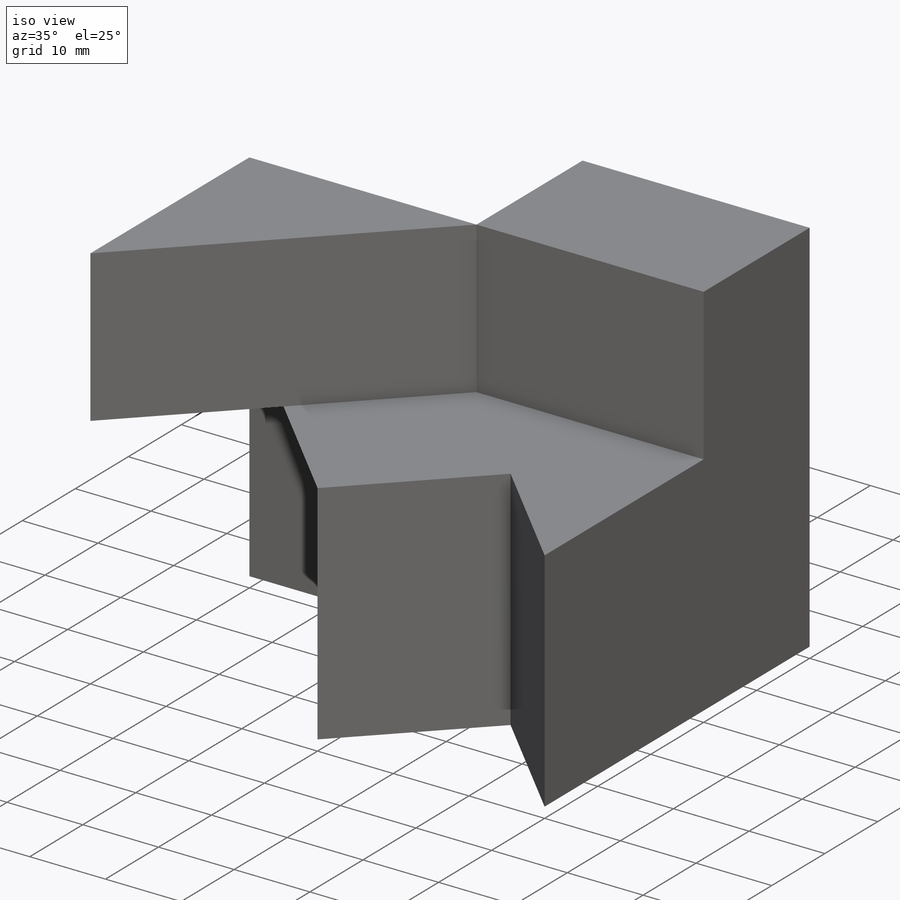
[diagram: iso view]
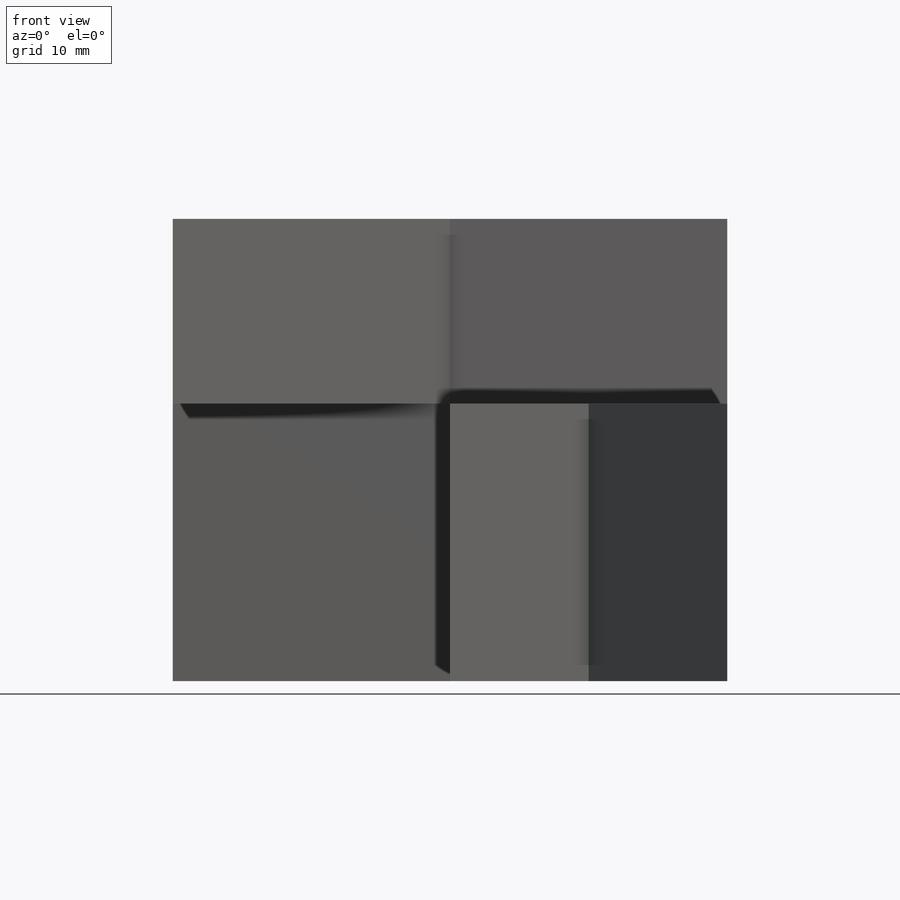
[diagram: front view]
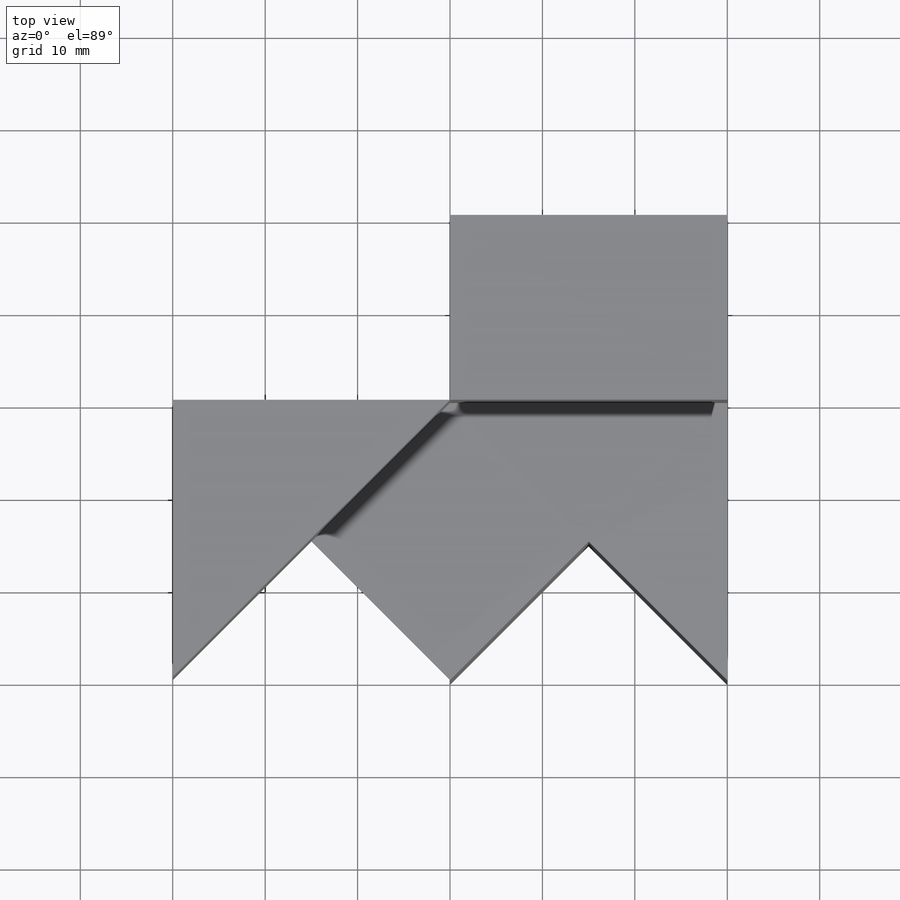
[diagram: top view]
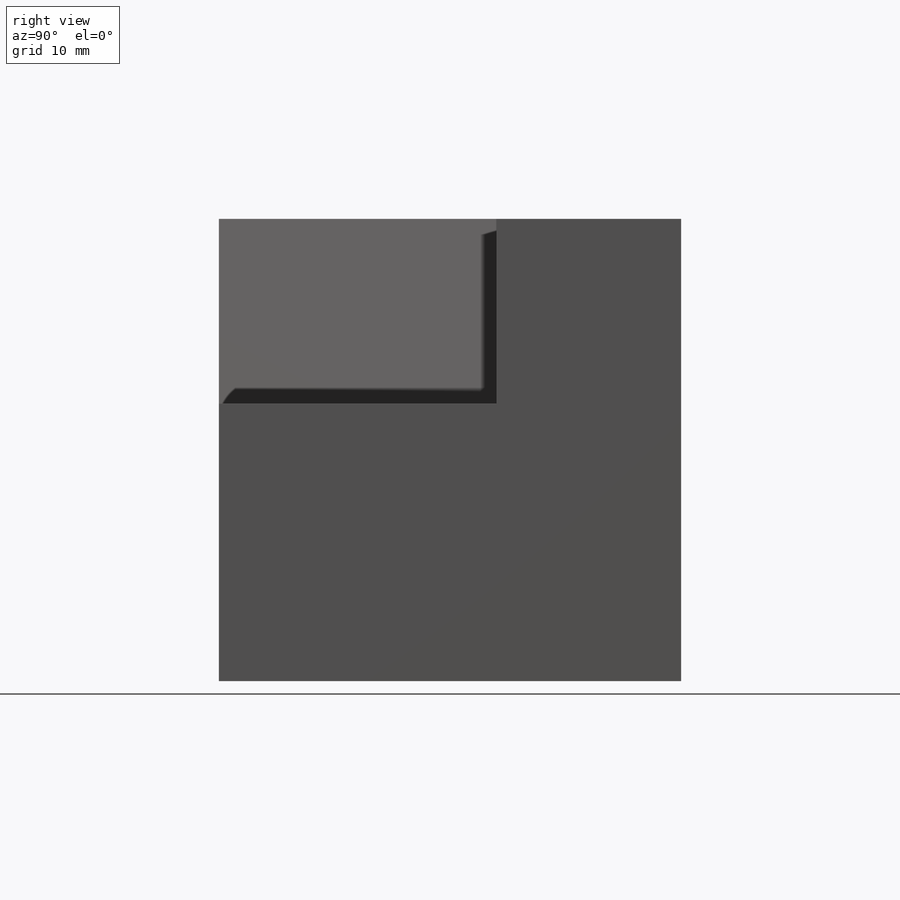
[diagram: right view]
SOLIDWORKS PART (.sldprt)
format: sldprt  version: not decoded by parser v0  size: 246,784 bytes
history: native  units: mm
features: sketch x10, cut_extrude x7, extrude x3, plane x3, material x1 (+13 scaffold rows collapsed)
feature tree (37):
  scaffold x13  (default folders/planes/origin — collapsed)
  material  "Material <not specified>"
  sketch  "Sketch1"  dims[c1.D1=~53.016784mm c1.D2=~65.716621mm c2.D1=60.0mm c2.D2=50.0mm]
  extrude  "Boss-Extrude1"  Depth=50mm
  sketch  "Sketch2"  dims[c1.D1=~20.490367mm c1.D2=~22.420084mm c2.D1=30.0mm c2.D2=20.0mm]
  cut_extrude  "Cut-Extrude1"  Depth=50mm
  sketch  "Sketch3"  dims[D1=15.0mm D2=15.0mm D3=15.0mm D4=15.0mm D5=15.0mm]
  cut_extrude  "Cut-Extrude2"  Depth=50mm
  plane  "Plane1"  Offset=50mm
  sketch  "Sketch5"  dims[c1.D1=~28.624047mm c1.D2=30.0mm c2.D1=20.0mm c2.D2=30.0mm]
  cut_extrude  "Cut-Extrude6"  Depth=29.999mm
  plane  "Plane2"  Offset=50mm
  sketch  "Sketch7"  dims[c1.D1=~34.429677mm c1.D2=~28.867355mm c2.D1=29.999mm c2.D2=29.999mm]
  cut_extrude  "Cut-Extrude10"  Depth=29.999mm
  plane  "Plane3"  Offset=50mm
  sketch  "Sketch8"  dims[D1=~21.213203mm]
  cut_extrude  "Cut-Extrude11"  Depth=20mm
  sketch  "Sketch11"  dims[D1=42.4257mm]
  extrude  "Boss-Extrude5"  Depth=20mm
  sketch  "Sketch14"  dims[D1=29.999mm]
  cut_extrude  "Cut-Extrude17"  Depth=0.0001mm
  sketch  "Sketch15"  dims[D1=~21.213203mm]
  cut_extrude  "Cut-Extrude18"  Depth=0.0001mm
  sketch  "Sketch16"  dims[D1=0.0mm]
  extrude  "Boss-Extrude16"  Depth=0.0001mm
decode coverage: 20 of 20 modeling features carry decoded parameters
note: ~ marks probable driven/reference dimensions
note: suppression state not decoded; provenance and decode notes live in map.json
